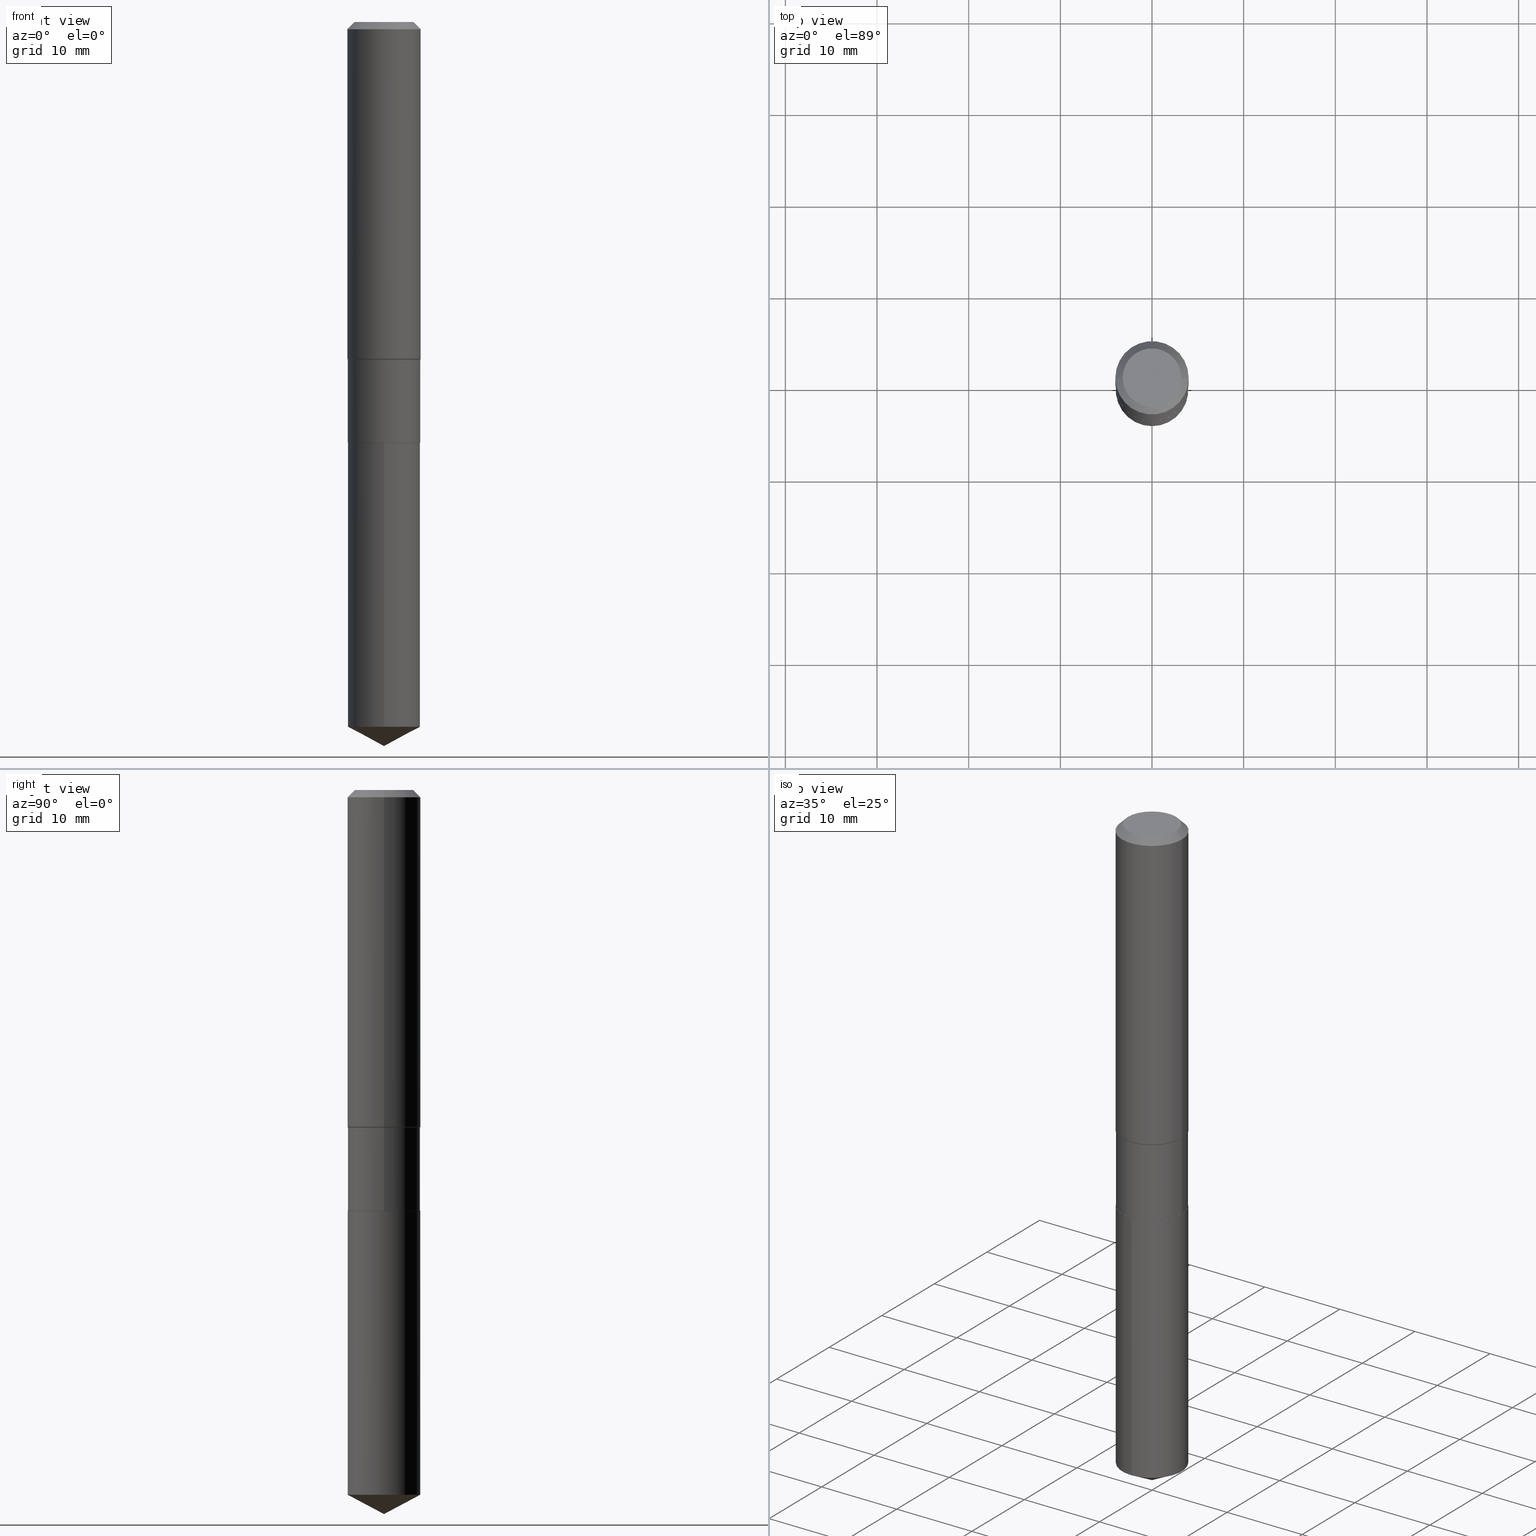
[diagram: canonical four-view strip — front | top / right | iso, engineering-drawing reading convention]
A machine part, canonical four-view strip (front | top / right | iso — engineering-drawing reading convention). The complete STEP part file that produces these views, byte-faithful:
ISO-10303-21;
HEADER;
FILE_DESCRIPTION (( 'STEP AP203' ),
    '1' );
FILE_NAME ('67649.STEP',
    '2024-04-25T08:18:48',
    ( '' ),
    ( '' ),
    'SwSTEP 2.0',
    'SolidWorks 2023',
    '' );
FILE_SCHEMA (( 'CONFIG_CONTROL_DESIGN' ));
ENDSEC;

DATA;
#1 = AXIS2_PLACEMENT_3D ( 'NONE', #155, #153, #296 ) ;
#2 = FACE_OUTER_BOUND ( 'NONE', #451, .T. ) ;
#3 = EDGE_CURVE ( 'NONE', #476, #52, #88, .T. ) ;
#4 = EDGE_CURVE ( 'NONE', #240, #433, #45, .T. ) ;
#5 = DIRECTION ( 'NONE',  ( 1.000000000000000000, -6.982962677686267499E-15, 0.000000000000000000 ) ) ;
#6 = PERSON_AND_ORGANIZATION ( #252, #447 ) ;
#7 = LINE ( 'NONE', #466, #361 ) ;
#8 = EDGE_LOOP ( 'NONE', ( #297, #200, #283, #143 ) ) ;
#9 = ORIENTED_EDGE ( 'NONE', *, *, #443, .F. ) ;
#10 = EDGE_CURVE ( 'NONE', #260, #198, #374, .T. ) ;
#11 = CARTESIAN_POINT ( 'NONE',  ( 0.000000000000000000, 0.000000000000000000, 0.000000000000000000 ) ) ;
#12 = CLOSED_SHELL ( 'NONE', ( #351, #60, #95, #227, #364 ) ) ;
#13 = AXIS2_PLACEMENT_3D ( 'NONE', #81, #197, #225 ) ;
#14 = DIRECTION ( 'NONE',  ( -0.7071067811864267805, 7.493145998869918709E-15, 0.7071067811866682540 ) ) ;
#15 = ORIENTED_EDGE ( 'NONE', *, *, #43, .F. ) ;
#16 = CARTESIAN_POINT ( 'NONE',  ( 4.418962132776542068E-29, -6.309106779289563966E-15, -1.807000000000000162 ) ) ;
#17 = ORIENTED_EDGE ( 'NONE', *, *, #294, .T. ) ;
#18 = LINE ( 'NONE', #137, #138 ) ;
#19 = CONICAL_SURFACE ( 'NONE', #328, 0.1549999999999999989, 0.7853981633972775267 ) ;
#20 = DIRECTION ( 'NONE',  ( 0.7071067811865595631, -2.468850131082382884E-15, 0.7071067811865354713 ) ) ;
#21 = APPROVAL_PERSON_ORGANIZATION ( #6, #26, #39 ) ;
#22 = CARTESIAN_POINT ( 'NONE',  ( 4.418962132776540947E-29, -6.309106779289563178E-15, -1.806999999999999940 ) ) ;
#23 = DIRECTION ( 'NONE',  ( -2.445468806185136597E-29, 3.491481338843145583E-15, 1.000000000000000000 ) ) ;
#24 = ADVANCED_FACE ( 'NONE', ( #98 ), #31, .F. ) ;
#25 = DIRECTION ( 'NONE',  ( -6.165590087286836818E-15, -0.8829475928589266553, 0.4694715627858914164 ) ) ;
#26 = APPROVAL ( #78, 'UNSPECIFIED' ) ;
#27 = CALENDAR_DATE ( 2024, 25, 4 ) ;
#28 = VECTOR ( 'NONE', #299, 39.37007874015748143 ) ;
#29 = VECTOR ( 'NONE', #14, 39.37007874015748143 ) ;
#30 = CONICAL_SURFACE ( 'NONE', #303, 0.1575000000000000011, 0.7853981633974450594 ) ;
#31 = PLANE ( 'NONE',  #373 ) ;
#32 = EDGE_CURVE ( 'NONE', #442, #433, #400, .T. ) ;
#33 = AXIS2_PLACEMENT_3D ( 'NONE', #79, #223, #409 ) ;
#34 = ORIENTED_EDGE ( 'NONE', *, *, #4, .F. ) ;
#36 = ORIENTED_EDGE ( 'NONE', *, *, #93, .F. ) ;
#35 = AXIS2_PLACEMENT_3D ( 'NONE', #269, #131, #199 ) ;
#37 = DIRECTION ( 'NONE',  ( -2.438088387897960049E-29, 3.491481338843145188E-15, 1.000000000000000000 ) ) ;
#38 = ORIENTED_EDGE ( 'NONE', *, *, #423, .T. ) ;
#39 = APPROVAL_ROLE ( '' ) ;
#40 = DIRECTION ( 'NONE',  ( 1.000000000000000000, -6.982962677686269077E-15, 0.000000000000000000 ) ) ;
#41 = ORIENTED_EDGE ( 'NONE', *, *, #294, .F. ) ;
#42 = APPROVAL_DATE_TIME ( #489, #26 ) ;
#43 = EDGE_CURVE ( 'NONE', #444, #77, #220, .T. ) ;
#44 = FACE_OUTER_BOUND ( 'NONE', #96, .T. ) ;
#45 = CIRCLE ( 'NONE', #33, 0.1554999999999999993 ) ;
#46 = AXIS2_PLACEMENT_3D ( 'NONE', #463, #263, #40 ) ;
#47 = CYLINDRICAL_SURFACE ( 'NONE', #35, 0.1554999999999999993 ) ;
#48 = CYLINDRICAL_SURFACE ( 'NONE', #246, 0.1554999999999999438 ) ;
#49 = MANIFOLD_SOLID_BREP ( 'Body-Move/Copy2[1]', #12 ) ;
#50 = FACE_OUTER_BOUND ( 'NONE', #167, .T. ) ;
#51 = PRODUCT ( '67649', '67649', '', ( #147 ) ) ;
#52 = VERTEX_POINT ( 'NONE', #144 ) ;
#53 =( LENGTH_UNIT ( ) NAMED_UNIT ( * ) SI_UNIT ( $, .METRE. ) );
#54 = VECTOR ( 'NONE', #175, 39.37007874015748143 ) ;
#55 = AXIS2_PLACEMENT_3D ( 'NONE', #239, #276, #392 ) ;
#56 = ORIENTED_EDGE ( 'NONE', *, *, #66, .T. ) ;
#57 = CARTESIAN_POINT ( 'NONE',  ( 4.418962132776542068E-29, -6.309106779289563966E-15, -1.807000000000000162 ) ) ;
#58 = ORIENTED_EDGE ( 'NONE', *, *, #127, .F. ) ;
#59 = ADVANCED_FACE ( 'NONE', ( #214 ), #487, .F. ) ;
#60 = ADVANCED_FACE ( 'NONE', ( #323 ), #419, .T. ) ;
#61 = ORIENTED_EDGE ( 'NONE', *, *, #254, .T. ) ;
#62 = CARTESIAN_POINT ( 'NONE',  ( 0.1260000000000000009, -1.027466422270894443E-15, 3.860086710919128072E-18 ) ) ;
#63 = AXIS2_PLACEMENT_3D ( 'NONE', #251, #407, #73 ) ;
#64 = AXIS2_PLACEMENT_3D ( 'NONE', #241, #97, #352 ) ;
#65 = CARTESIAN_POINT ( 'NONE',  ( 0.000000000000000000, 0.000000000000000000, 0.000000000000000000 ) ) ;
#66 = EDGE_CURVE ( 'NONE', #454, #476, #275, .T. ) ;
#67 = CC_DESIGN_APPROVAL ( #26, ( #259 ) ) ;
#68 = DIRECTION ( 'NONE',  ( -2.445468806185136877E-29, 3.491481338843145188E-15, 1.000000000000000000 ) ) ;
#69 = CARTESIAN_POINT ( 'NONE',  ( 0.1575000000000000011, -1.209798283909146741E-15, -0.03150000000000019451 ) ) ;
#70 = APPROVAL_ROLE ( '' ) ;
#71 = VECTOR ( 'NONE', #432, 39.37007874015748143 ) ;
#72 =( NAMED_UNIT ( * ) PLANE_ANGLE_UNIT ( ) SI_UNIT ( $, .RADIAN. ) );
#73 = DIRECTION ( 'NONE',  ( 1.000000000000000000, -6.982962677686266711E-15, 0.000000000000000000 ) ) ;
#74 = ADVANCED_FACE ( 'NONE', ( #102 ), #363, .T. ) ;
#75 = ORIENTED_EDGE ( 'NONE', *, *, #437, .F. ) ;
#76 = CARTESIAN_POINT ( 'NONE',  ( -0.1575000000000000844, 1.119104808822158392E-15, -7.747322767151481189E-30 ) ) ;
#77 = VERTEX_POINT ( 'NONE', #108 ) ;
#78 = APPROVAL_STATUS ( 'not_yet_approved' ) ;
#79 = CARTESIAN_POINT ( 'NONE',  ( 4.418962132776540947E-29, -6.309106779289563178E-15, -1.806999999999999940 ) ) ;
#80 = APPROVAL ( #461, 'UNSPECIFIED' ) ;
#81 = CARTESIAN_POINT ( 'NONE',  ( 7.703226739483226971E-31, -1.099816621735597538E-16, -0.03150000000000019451 ) ) ;
#82 = PERSON_AND_ORGANIZATION ( #252, #447 ) ;
#83 = CARTESIAN_POINT ( 'NONE',  ( 4.418962132776540947E-29, -6.309106779289563178E-15, -1.806999999999999940 ) ) ;
#84 = CIRCLE ( 'NONE', #106, 0.1549999999999999989 ) ;
#85 = CARTESIAN_POINT ( 'NONE',  ( -0.1549999999999999989, -5.207765538861409278E-15, -1.807000000000000162 ) ) ;
#86 = VERTEX_POINT ( 'NONE', #69 ) ;
#87 = CARTESIAN_POINT ( 'NONE',  ( 0.000000000000000000, 0.000000000000000000, 0.000000000000000000 ) ) ;
#88 = LINE ( 'NONE', #181, #237 ) ;
#89 = DIRECTION ( 'NONE',  ( -2.445564275937818742E-29, 3.491344620723504179E-15, 1.000000000000000000 ) ) ;
#90 = DIRECTION ( 'NONE',  ( 2.445564275937818181E-29, -3.491344620723504179E-15, -1.000000000000000000 ) ) ;
#91 = CIRCLE ( 'NONE', #126, 0.1549999999999999989 ) ;
#92 = ORIENTED_EDGE ( 'NONE', *, *, #116, .T. ) ;
#93 = EDGE_CURVE ( 'NONE', #444, #442, #281, .T. ) ;
#94 = LINE ( 'NONE', #215, #71 ) ;
#95 = ADVANCED_FACE ( 'NONE', ( #253 ), #117, .T. ) ;
#96 = EDGE_LOOP ( 'NONE', ( #353, #274, #425, #61 ) ) ;
#97 = DIRECTION ( 'NONE',  ( -2.445564275937818461E-29, 3.491344620723504179E-15, 1.000000000000000000 ) ) ;
#98 = FACE_OUTER_BOUND ( 'NONE', #411, .T. ) ;
#99 = DIRECTION ( 'NONE',  ( -2.445468806185136597E-29, 3.491481338843145583E-15, 1.000000000000000000 ) ) ;
#100 = EDGE_CURVE ( 'NONE', #467, #52, #219, .T. ) ;
#101 = CIRCLE ( 'NONE', #119, 0.1575000000000001676 ) ;
#102 = FACE_OUTER_BOUND ( 'NONE', #345, .T. ) ;
#103 = CC_DESIGN_APPROVAL ( #80, ( #486 ) ) ;
#104 = COORDINATED_UNIVERSAL_TIME_OFFSET ( 5, 0, .BEHIND. ) ;
#105 = AXIS2_PLACEMENT_3D ( 'NONE', #65, #453, #141 ) ;
#106 = AXIS2_PLACEMENT_3D ( 'NONE', #16, #99, #399 ) ;
#107 = DIRECTION ( 'NONE',  ( 0.000000000000000000, 0.000000000000000000, 1.000000000000000000 ) ) ;
#108 = CARTESIAN_POINT ( 'NONE',  ( 1.104893954107029543E-15, 0.1554999999999894245, -3.027519183376641276 ) ) ;
#109 = EDGE_LOOP ( 'NONE', ( #136, #203, #113, #390 ) ) ;
#110 = APPLICATION_PROTOCOL_DEFINITION ( 'international standard', 'config_control_design', 1994, #250 ) ;
#111 = CARTESIAN_POINT ( 'NONE',  ( 7.605848983335612188E-29, -1.085927413865862594E-14, -3.110199999999999854 ) ) ;
#112 = EDGE_CURVE ( 'NONE', #86, #52, #285, .T. ) ;
#113 = ORIENTED_EDGE ( 'NONE', *, *, #112, .F. ) ;
#114 = CALENDAR_DATE ( 2024, 25, 4 ) ;
#115 = DIRECTION ( 'NONE',  ( -2.445468806185136877E-29, 3.491481338843145188E-15, 1.000000000000000000 ) ) ;
#116 = EDGE_CURVE ( 'NONE', #408, #233, #360, .T. ) ;
#117 = CONICAL_SURFACE ( 'NONE', #384, 74.04434902938363905, 1.082104136236487157 ) ;
#118 = ORIENTED_EDGE ( 'NONE', *, *, #405, .F. ) ;
#119 = AXIS2_PLACEMENT_3D ( 'NONE', #123, #228, #5 ) ;
#120 = UNCERTAINTY_MEASURE_WITH_UNIT (LENGTH_MEASURE( 1.000000000000000082E-05 ), #472, 'distance_accuracy_value', 'NONE');
#121 = CARTESIAN_POINT ( 'NONE',  ( 3.544217940804118480E-29, -5.060203904385370615E-15, -1.449300000000000033 ) ) ;
#122 = COORDINATED_UNIVERSAL_TIME_OFFSET ( 5, 0, .BEHIND. ) ;
#123 = CARTESIAN_POINT ( 'NONE',  ( 3.539327003191747834E-29, -5.053220941707684601E-15, -1.447299999999999809 ) ) ;
#124 = DIRECTION ( 'NONE',  ( -6.982962677686265133E-15, -1.000000000000000000, 3.513630860018345064E-15 ) ) ;
#125 = APPROVAL_DATE_TIME ( #456, #80 ) ;
#126 = AXIS2_PLACEMENT_3D ( 'NONE', #57, #168, #362 ) ;
#127 = EDGE_CURVE ( 'NONE', #77, #442, #210, .T. ) ;
#128 = CYLINDRICAL_SURFACE ( 'NONE', #182, 0.1554999999999999438 ) ;
#129 = ORIENTED_EDGE ( 'NONE', *, *, #410, .T. ) ;
#130 = ORIENTED_EDGE ( 'NONE', *, *, #100, .F. ) ;
#131 = DIRECTION ( 'NONE',  ( -2.445564275937818461E-29, 3.491344620723504179E-15, 1.000000000000000000 ) ) ;
#132 = EDGE_LOOP ( 'NONE', ( #397, #56 ) ) ;
#133 = ORIENTED_EDGE ( 'NONE', *, *, #317, .T. ) ;
#134 = DIRECTION ( 'NONE',  ( -0.7071067811865595631, 7.493145998870398336E-15, 0.7071067811865354713 ) ) ;
#135 = PRODUCT_DEFINITION_SHAPE ( 'NONE', 'NONE',  #474 ) ;
#136 = ORIENTED_EDGE ( 'NONE', *, *, #342, .T. ) ;
#137 = CARTESIAN_POINT ( 'NONE',  ( -0.1554999999999999438, -3.955309950278415028E-15, -1.449300000000000033 ) ) ;
#138 = VECTOR ( 'NONE', #134, 39.37007874015748143 ) ;
#139 = EDGE_LOOP ( 'NONE', ( #75, #255, #165, #272 ) ) ;
#140 = DIRECTION ( 'NONE',  ( -2.445468806185136597E-29, 3.491481338843145583E-15, 1.000000000000000000 ) ) ;
#141 = DIRECTION ( 'NONE',  ( 1.000000000000000000, -6.982962677686267499E-15, 4.876176775795936353E-29 ) ) ;
#142 = CARTESIAN_POINT ( 'NONE',  ( 7.703226739483226971E-31, -1.099816621735597538E-16, -0.03150000000000019451 ) ) ;
#143 = ORIENTED_EDGE ( 'NONE', *, *, #317, .F. ) ;
#144 = CARTESIAN_POINT ( 'NONE',  ( -0.1575000000000000011, -1.462496493118463440E-15, -0.03150000000000019451 ) ) ;
#145 = FACE_OUTER_BOUND ( 'NONE', #308, .T. ) ;
#146 = AXIS2_PLACEMENT_3D ( 'NONE', #11, #426, #312 ) ;
#147 = MECHANICAL_CONTEXT ( 'NONE', #231, 'mechanical' ) ;
#148 = EDGE_CURVE ( 'NONE', #260, #267, #401, .T. ) ;
#149 = DIRECTION ( 'NONE',  ( -2.445468806185136597E-29, 3.491481338843145583E-15, 1.000000000000000000 ) ) ;
#150 = AXIS2_PLACEMENT_3D ( 'NONE', #332, #448, #488 ) ;
#151 = AXIS2_PLACEMENT_3D ( 'NONE', #142, #211, #245 ) ;
#152 = ORIENTED_EDGE ( 'NONE', *, *, #423, .F. ) ;
#153 = DIRECTION ( 'NONE',  ( -2.445564275937818461E-29, 3.491344620723504179E-15, 1.000000000000000000 ) ) ;
#154 = ORIENTED_EDGE ( 'NONE', *, *, #32, .F. ) ;
#155 = CARTESIAN_POINT ( 'NONE',  ( -8.867603661060943004E-28, 1.265954855378931861E-13, 36.25987874015748247 ) ) ;
#156 = FACE_OUTER_BOUND ( 'NONE', #428, .T. ) ;
#157 = DATE_TIME_ROLE ( 'creation_date' ) ;
#158 = CYLINDRICAL_SURFACE ( 'NONE', #430, 0.1554999999999999993 ) ;
#159 = DIRECTION ( 'NONE',  ( -2.445468806185136597E-29, 3.491481338843145583E-15, 1.000000000000000000 ) ) ;
#160 = APPROVAL_ROLE ( '' ) ;
#161 = CARTESIAN_POINT ( 'NONE',  ( 7.703226739483226971E-31, -1.099816621735597538E-16, -0.03150000000000019451 ) ) ;
#162 = ORIENTED_EDGE ( 'NONE', *, *, #405, .T. ) ;
#163 = CIRCLE ( 'NONE', #212, 0.1554999999999999993 ) ;
#164 = DIRECTION ( 'NONE',  ( 1.000000000000000000, -6.982962677686268288E-15, 4.876176775795936353E-29 ) ) ;
#165 = ORIENTED_EDGE ( 'NONE', *, *, #10, .T. ) ;
#166 = CARTESIAN_POINT ( 'NONE',  ( 3.544217940804118480E-29, -5.060203904385370615E-15, -1.449300000000000033 ) ) ;
#167 = EDGE_LOOP ( 'NONE', ( #205, #431, #190, #34 ) ) ;
#168 = DIRECTION ( 'NONE',  ( -2.445468806185136597E-29, 3.491481338843145583E-15, 1.000000000000000000 ) ) ;
#169 = ORIENTED_EDGE ( 'NONE', *, *, #66, .F. ) ;
#170 = CARTESIAN_POINT ( 'NONE',  ( 7.403820245739254585E-29, -1.057035986466144148E-14, -3.027519183376640832 ) ) ;
#171 = CIRCLE ( 'NONE', #287, 0.1260000000000000009 ) ;
#172 = DIRECTION ( 'NONE',  ( 1.000000000000000000, -6.982962677686265922E-15, 4.876176775795935793E-29 ) ) ;
#173 = DIRECTION ( 'NONE',  ( -6.982962677686265133E-15, -1.000000000000000000, 3.513630860018345064E-15 ) ) ;
#174 = DIRECTION ( 'NONE',  ( 1.000000000000000000, -6.982962677686265922E-15, 0.000000000000000000 ) ) ;
#175 = DIRECTION ( 'NONE',  ( -2.445564275937818742E-29, 3.491344620723504179E-15, 1.000000000000000000 ) ) ;
#176 = DATE_AND_TIME ( #27, #421 ) ;
#177 = VECTOR ( 'NONE', #20, 39.37007874015748143 ) ;
#178 = CIRCLE ( 'NONE', #64, 0.1554999999999999993 ) ;
#179 = PRODUCT_RELATED_PRODUCT_CATEGORY ( 'detail', '', ( #51 ) ) ;
#180 = EDGE_CURVE ( 'NONE', #233, #408, #266, .T. ) ;
#181 = CARTESIAN_POINT ( 'NONE',  ( -0.1575000000000000011, 9.898349595620272334E-16, -0.03150000000000019451 ) ) ;
#182 = AXIS2_PLACEMENT_3D ( 'NONE', #301, #310, #383 ) ;
#183 = CC_DESIGN_APPROVAL ( #369, ( #474 ) ) ;
#184 = ORIENTED_EDGE ( 'NONE', *, *, #443, .T. ) ;
#185 = PERSON_AND_ORGANIZATION ( #252, #447 ) ;
#186 = CARTESIAN_POINT ( 'NONE',  ( -1.085850696380170092E-15, -0.1555000000000062998, -1.806999999999999273 ) ) ;
#187 = EDGE_LOOP ( 'NONE', ( #208, #17, #460, #391 ) ) ;
#188 = COORDINATED_UNIVERSAL_TIME_OFFSET ( 5, 0, .BEHIND. ) ;
#189 = CARTESIAN_POINT ( 'NONE',  ( 3.539327003191747834E-29, -5.053220941707684601E-15, -1.447299999999999809 ) ) ;
#190 = ORIENTED_EDGE ( 'NONE', *, *, #32, .T. ) ;
#191 = DIRECTION ( 'NONE',  ( -1.000000000000000000, 6.982962677686265922E-15, 0.000000000000000000 ) ) ;
#192 = ADVANCED_FACE ( 'NONE', ( #271 ), #48, .T. ) ;
#193 = AXIS2_PLACEMENT_3D ( 'NONE', #449, #107, #298 ) ;
#194 = DATE_AND_TIME ( #114, #304 ) ;
#195 = LINE ( 'NONE', #416, #350 ) ;
#196 = CC_DESIGN_PERSON_AND_ORGANIZATION_ASSIGNMENT ( #224, #226, ( #486 ) ) ;
#197 = DIRECTION ( 'NONE',  ( -2.445468806185136597E-29, 3.491481338843145583E-15, 1.000000000000000000 ) ) ;
#198 = VERTEX_POINT ( 'NONE', #234 ) ;
#199 = DIRECTION ( 'NONE',  ( -6.982962677686265133E-15, -1.000000000000000000, 3.513630860018345064E-15 ) ) ;
#200 = ORIENTED_EDGE ( 'NONE', *, *, #356, .T. ) ;
#201 = ADVANCED_FACE ( 'NONE', ( #389 ), #128, .T. ) ;
#202 = CIRCLE ( 'NONE', #414, 0.1554999999999999438 ) ;
#203 = ORIENTED_EDGE ( 'NONE', *, *, #100, .T. ) ;
#204 = FACE_OUTER_BOUND ( 'NONE', #139, .T. ) ;
#205 = ORIENTED_EDGE ( 'NONE', *, *, #213, .F. ) ;
#206 = DIRECTION ( 'NONE',  ( 1.000000000000000000, -6.982962677686263555E-15, 0.000000000000000000 ) ) ;
#207 = MANIFOLD_SOLID_BREP ( 'Body-Move/Copy2[2]', #217 ) ;
#208 = ORIENTED_EDGE ( 'NONE', *, *, #180, .T. ) ;
#209 = ORIENTED_EDGE ( 'NONE', *, *, #213, .T. ) ;
#210 = CIRCLE ( 'NONE', #484, 0.1554999999999999993 ) ;
#211 = DIRECTION ( 'NONE',  ( 2.445468806185136597E-29, -3.491481338843145583E-15, -1.000000000000000000 ) ) ;
#212 = AXIS2_PLACEMENT_3D ( 'NONE', #170, #436, #173 ) ;
#213 = EDGE_CURVE ( 'NONE', #77, #240, #7, .T. ) ;
#214 = FACE_OUTER_BOUND ( 'NONE', #132, .T. ) ;
#215 = CARTESIAN_POINT ( 'NONE',  ( 0.1575000000000000011, -1.190510096822576026E-15, -0.03150000000000019451 ) ) ;
#216 = DIRECTION ( 'NONE',  ( 1.000000000000000000, -6.982962677686269077E-15, 0.000000000000000000 ) ) ;
#217 = CLOSED_SHELL ( 'NONE', ( #377, #458, #229, #288, #201, #192, #387, #74, #336, #59, #24, #385 ) ) ;
#218 = VECTOR ( 'NONE', #68, 39.37007874015748143 ) ;
#219 = LINE ( 'NONE', #76, #291 ) ;
#220 = LINE ( 'NONE', #334, #28 ) ;
#221 = VECTOR ( 'NONE', #381, 39.37007874015748143 ) ;
#222 = SHAPE_DEFINITION_REPRESENTATION ( #135, #398 ) ;
#223 = DIRECTION ( 'NONE',  ( -2.445564275937818461E-29, 3.491344620723504179E-15, 1.000000000000000000 ) ) ;
#224 = PERSON_AND_ORGANIZATION ( #252, #447 ) ;
#225 = DIRECTION ( 'NONE',  ( 1.000000000000000000, -6.982962677686265922E-15, 0.000000000000000000 ) ) ;
#226 = PERSON_AND_ORGANIZATION_ROLE ( 'design_supplier' ) ;
#227 = ADVANCED_FACE ( 'NONE', ( #50 ), #47, .T. ) ;
#228 = DIRECTION ( 'NONE',  ( -2.445468806185136597E-29, 3.491481338843145583E-15, 1.000000000000000000 ) ) ;
#229 = ADVANCED_FACE ( 'NONE', ( #347 ), #232, .T. ) ;
#230 = AXIS2_PLACEMENT_3D ( 'NONE', #189, #455, #337 ) ;
#231 = APPLICATION_CONTEXT ( 'configuration controlled 3d designs of mechanical parts and assemblies' ) ;
#232 = CYLINDRICAL_SURFACE ( 'NONE', #146, 0.1575000000000000844 ) ;
#233 = VERTEX_POINT ( 'NONE', #305 ) ;
#234 = CARTESIAN_POINT ( 'NONE',  ( 0.1575000000000001676, -6.153037563443272081E-15, -1.447299999999999809 ) ) ;
#235 = DIRECTION ( 'NONE',  ( -2.445468806185136877E-29, 3.491481338843145188E-15, 1.000000000000000000 ) ) ;
#236 = ORIENTED_EDGE ( 'NONE', *, *, #437, .T. ) ;
#237 = VECTOR ( 'NONE', #244, 39.37007874015748143 ) ;
#238 = AXIS2_PLACEMENT_3D ( 'NONE', #166, #475, #314 ) ;
#239 = CARTESIAN_POINT ( 'NONE',  ( 4.418962132776542068E-29, -6.309106779289563966E-15, -1.807000000000000162 ) ) ;
#240 = VERTEX_POINT ( 'NONE', #386 ) ;
#241 = CARTESIAN_POINT ( 'NONE',  ( 4.418962132776540947E-29, -6.309106779289563178E-15, -1.806999999999999940 ) ) ;
#242 = EDGE_LOOP ( 'NONE', ( #169, #322, #293, #277 ) ) ;
#243 = CARTESIAN_POINT ( 'NONE',  ( -0.1549999999999999989, -5.205116311687297288E-15, -1.807000000000000162 ) ) ;
#244 = DIRECTION ( 'NONE',  ( -0.7071067811865452413, 2.468850131082233000E-15, -0.7071067811865497932 ) ) ;
#245 = DIRECTION ( 'NONE',  ( -1.000000000000000000, 6.982962677686265922E-15, 0.000000000000000000 ) ) ;
#246 = AXIS2_PLACEMENT_3D ( 'NONE', #87, #422, #164 ) ;
#247 = LOCAL_TIME ( 4, 18, 48.00000000000000000, #122 ) ;
#248 = DIRECTION ( 'NONE',  ( -2.445564275937818461E-29, 3.491344620723504179E-15, 1.000000000000000000 ) ) ;
#249 = CC_DESIGN_PERSON_AND_ORGANIZATION_ASSIGNMENT ( #289, #446, ( #474 ) ) ;
#250 = APPLICATION_CONTEXT ( 'configuration controlled 3d designs of mechanical parts and assemblies' ) ;
#251 = CARTESIAN_POINT ( 'NONE',  ( 4.417739398373449267E-29, -6.307361038620141674E-15, -1.806499999999999995 ) ) ;
#252 = PERSON ( 'UNSPECIFIED', 'UNSPECIFIED', 'UNSPECIFIED', ('UNSPECIFIED'), ('UNSPECIFIED'), ('UNSPECIFIED') ) ;
#253 = FACE_OUTER_BOUND ( 'NONE', #388, .T. ) ;
#254 = EDGE_CURVE ( 'NONE', #52, #86, #258, .T. ) ;
#255 = ORIENTED_EDGE ( 'NONE', *, *, #300, .T. ) ;
#256 = SECURITY_CLASSIFICATION_LEVEL ( 'unclassified' ) ;
#257 = CARTESIAN_POINT ( 'NONE',  ( 7.703226739483226971E-31, -1.099816621735597538E-16, -0.03150000000000019451 ) ) ;
#258 = CIRCLE ( 'NONE', #13, 0.1575000000000000011 ) ;
#259 = SECURITY_CLASSIFICATION ( '', '', #256 ) ;
#260 = VERTEX_POINT ( 'NONE', #265 ) ;
#261 = DIRECTION ( 'NONE',  ( -2.445468806185136597E-29, 3.491481338843145583E-15, 1.000000000000000000 ) ) ;
#262 = CC_DESIGN_PERSON_AND_ORGANIZATION_ASSIGNMENT ( #295, #371, ( #51 ) ) ;
#263 = DIRECTION ( 'NONE',  ( -2.445468806185136597E-29, 3.491481338843145583E-15, 1.000000000000000000 ) ) ;
#264 = CALENDAR_DATE ( 2024, 25, 4 ) ;
#265 = CARTESIAN_POINT ( 'NONE',  ( 0.1554999999999999438, -6.146054600765585278E-15, -1.449300000000000033 ) ) ;
#266 = CIRCLE ( 'NONE', #63, 0.1554999999999999993 ) ;
#267 = VERTEX_POINT ( 'NONE', #379 ) ;
#268 = VECTOR ( 'NONE', #235, 39.37007874015748143 ) ;
#269 = CARTESIAN_POINT ( 'NONE',  ( 4.418962132776540947E-29, -6.309106779289563178E-15, -1.806999999999999940 ) ) ;
#270 = ORIENTED_EDGE ( 'NONE', *, *, #370, .T. ) ;
#271 = FACE_OUTER_BOUND ( 'NONE', #380, .T. ) ;
#272 = ORIENTED_EDGE ( 'NONE', *, *, #290, .F. ) ;
#273 = CARTESIAN_POINT ( 'NONE',  ( 7.606194011021802781E-29, -1.085878003937424329E-14, -3.110199999999999854 ) ) ;
#274 = ORIENTED_EDGE ( 'NONE', *, *, #346, .F. ) ;
#275 = CIRCLE ( 'NONE', #319, 0.1260000000000000009 ) ;
#276 = DIRECTION ( 'NONE',  ( -2.445468806185136597E-29, 3.491481338843145583E-15, 1.000000000000000000 ) ) ;
#277 = ORIENTED_EDGE ( 'NONE', *, *, #3, .F. ) ;
#278 = CC_DESIGN_PERSON_AND_ORGANIZATION_ASSIGNMENT ( #382, #306, ( #259 ) ) ;
#279 = CARTESIAN_POINT ( 'NONE',  ( -0.1554999999999999993, -4.578888517395800557E-15, -1.806499999999999995 ) ) ;
#280 = CC_DESIGN_PERSON_AND_ORGANIZATION_ASSIGNMENT ( #82, #452, ( #486 ) ) ;
#281 = LINE ( 'NONE', #111, #439 ) ;
#282 = CARTESIAN_POINT ( 'NONE',  ( -0.1575000000000001676, -3.934116132885524631E-15, -1.447299999999999809 ) ) ;
#283 = ORIENTED_EDGE ( 'NONE', *, *, #180, .F. ) ;
#284 = DIRECTION ( 'NONE',  ( -2.445468806185136597E-29, 3.491481338843145583E-15, 1.000000000000000000 ) ) ;
#285 = CIRCLE ( 'NONE', #331, 0.1575000000000000011 ) ;
#286 = DIRECTION ( 'NONE',  ( 6.982962677686265922E-15, 1.000000000000000000, -3.491344620723504179E-15 ) ) ;
#287 = AXIS2_PLACEMENT_3D ( 'NONE', #340, #159, #307 ) ;
#288 = ADVANCED_FACE ( 'NONE', ( #156 ), #440, .T. ) ;
#289 = PERSON_AND_ORGANIZATION ( #252, #447 ) ;
#290 = EDGE_CURVE ( 'NONE', #467, #198, #485, .T. ) ;
#291 = VECTOR ( 'NONE', #115, 39.37007874015748143 ) ;
#292 = DIRECTION ( 'NONE',  ( -2.445468806185136597E-29, 3.491481338843145583E-15, 1.000000000000000000 ) ) ;
#293 = ORIENTED_EDGE ( 'NONE', *, *, #112, .T. ) ;
#294 = EDGE_CURVE ( 'NONE', #408, #267, #195, .T. ) ;
#295 = PERSON_AND_ORGANIZATION ( #252, #447 ) ;
#296 = DIRECTION ( 'NONE',  ( -6.982962677686268288E-15, -1.000000000000000000, 3.541896320645556136E-15 ) ) ;
#297 = ORIENTED_EDGE ( 'NONE', *, *, #462, .T. ) ;
#298 = DIRECTION ( 'NONE',  ( 1.000000000000000000, 0.000000000000000000, 0.000000000000000000 ) ) ;
#299 = DIRECTION ( 'NONE',  ( 6.273719981627766865E-15, 0.8829475928589298750, 0.4694715627858851992 ) ) ;
#300 = EDGE_CURVE ( 'NONE', #267, #260, #202, .T. ) ;
#301 = CARTESIAN_POINT ( 'NONE',  ( 0.000000000000000000, 0.000000000000000000, 0.000000000000000000 ) ) ;
#302 = CONICAL_SURFACE ( 'NONE', #151, 0.1575000000000000011, 0.7853981633974450594 ) ;
#303 = AXIS2_PLACEMENT_3D ( 'NONE', #161, #344, #191 ) ;
#304 = LOCAL_TIME ( 4, 18, 48.00000000000000000, #104 ) ;
#305 = CARTESIAN_POINT ( 'NONE',  ( 0.1554999999999999993, -7.393211735000357126E-15, -1.806499999999999995 ) ) ;
#306 = PERSON_AND_ORGANIZATION_ROLE ( 'classification_officer' ) ;
#307 = DIRECTION ( 'NONE',  ( 1.000000000000000000, -6.982962677686265922E-15, 4.876281427513067258E-29 ) ) ;
#308 = EDGE_LOOP ( 'NONE', ( #184, #333 ) ) ;
#309 = PERSON_AND_ORGANIZATION ( #252, #447 ) ;
#310 = DIRECTION ( 'NONE',  ( -2.445468806185136597E-29, 3.491481338843145583E-15, 1.000000000000000000 ) ) ;
#311 = ORIENTED_EDGE ( 'NONE', *, *, #254, .F. ) ;
#312 = DIRECTION ( 'NONE',  ( 1.000000000000000000, -6.982962677686267499E-15, 4.876176775795936353E-29 ) ) ;
#313 = ORIENTED_EDGE ( 'NONE', *, *, #93, .T. ) ;
#314 = DIRECTION ( 'NONE',  ( 1.000000000000000000, -6.982962677686269077E-15, 0.000000000000000000 ) ) ;
#315 = ORIENTED_EDGE ( 'NONE', *, *, #462, .F. ) ;
#316 = PLANE ( 'NONE',  #320 ) ;
#317 = EDGE_CURVE ( 'NONE', #424, #233, #341, .T. ) ;
#318 = ORIENTED_EDGE ( 'NONE', *, *, #10, .F. ) ;
#319 = AXIS2_PLACEMENT_3D ( 'NONE', #450, #292, #473 ) ;
#320 = AXIS2_PLACEMENT_3D ( 'NONE', #22, #90, #286 ) ;
#321 = LENGTH_MEASURE_WITH_UNIT ( LENGTH_MEASURE( 0.02539999999999999897 ), #53 );
#322 = ORIENTED_EDGE ( 'NONE', *, *, #479, .T. ) ;
#323 = FACE_OUTER_BOUND ( 'NONE', #465, .T. ) ;
#324 = CARTESIAN_POINT ( 'NONE',  ( -1.085850696380140313E-15, -0.1555000000000105465, -3.027519183376639944 ) ) ;
#325 = DIRECTION ( 'NONE',  ( -6.982962677686268288E-15, -1.000000000000000000, 3.541896320645556136E-15 ) ) ;
#326 = CARTESIAN_POINT ( 'NONE',  ( 4.418962132776542068E-29, -6.309106779289563966E-15, -1.807000000000000162 ) ) ;
#327 = CARTESIAN_POINT ( 'NONE',  ( -8.867603661060943004E-28, 1.265954855378931861E-13, 36.25987874015748247 ) ) ;
#328 = AXIS2_PLACEMENT_3D ( 'NONE', #326, #140, #206 ) ;
#329 = CC_DESIGN_SECURITY_CLASSIFICATION ( #259, ( #486 ) ) ;
#330 =( NAMED_UNIT ( * ) SI_UNIT ( $, .STERADIAN. ) SOLID_ANGLE_UNIT ( ) );
#331 = AXIS2_PLACEMENT_3D ( 'NONE', #257, #23, #174 ) ;
#332 = CARTESIAN_POINT ( 'NONE',  ( -4.719860820353100843E-47, 6.738710358733633822E-33, 1.930043355456229866E-18 ) ) ;
#333 = ORIENTED_EDGE ( 'NONE', *, *, #4, .T. ) ;
#334 = CARTESIAN_POINT ( 'NONE',  ( 7.606197036507338100E-29, -1.085878003937424487E-14, -3.110199999999999854 ) ) ;
#335 = CALENDAR_DATE ( 2024, 25, 4 ) ;
#336 = ADVANCED_FACE ( 'NONE', ( #44 ), #30, .T. ) ;
#337 = DIRECTION ( 'NONE',  ( 1.000000000000000000, -6.982962677686267499E-15, 0.000000000000000000 ) ) ;
#338 = ORIENTED_EDGE ( 'NONE', *, *, #43, .T. ) ;
#339 = COORDINATED_UNIVERSAL_TIME_OFFSET ( 5, 0, .BEHIND. ) ;
#340 = CARTESIAN_POINT ( 'NONE',  ( -9.439721640706201686E-47, 1.347742071746726764E-32, 3.860086710912459732E-18 ) ) ;
#341 = LINE ( 'NONE', #457, #221 ) ;
#342 = EDGE_CURVE ( 'NONE', #198, #467, #101, .T. ) ;
#343 = DATE_AND_TIME ( #335, #481 ) ;
#344 = DIRECTION ( 'NONE',  ( 2.445468806185136597E-29, -3.491481338843145583E-15, -1.000000000000000000 ) ) ;
#345 = EDGE_LOOP ( 'NONE', ( #130, #358, #270, #311 ) ) ;
#346 = EDGE_CURVE ( 'NONE', #476, #454, #171, .T. ) ;
#347 = FACE_OUTER_BOUND ( 'NONE', #109, .T. ) ;
#348 = AXIS2_PLACEMENT_3D ( 'NONE', #480, #149, #216 ) ;
#349 = ORIENTED_EDGE ( 'NONE', *, *, #148, .T. ) ;
#350 = VECTOR ( 'NONE', #490, 39.37007874015748143 ) ;
#351 = ADVANCED_FACE ( 'NONE', ( #2 ), #158, .T. ) ;
#352 = DIRECTION ( 'NONE',  ( -6.982962677686265133E-15, -1.000000000000000000, 3.513630860018345064E-15 ) ) ;
#353 = ORIENTED_EDGE ( 'NONE', *, *, #479, .F. ) ;
#354 = ORIENTED_EDGE ( 'NONE', *, *, #342, .F. ) ;
#355 = FACE_OUTER_BOUND ( 'NONE', #8, .T. ) ;
#356 = EDGE_CURVE ( 'NONE', #359, #408, #418, .T. ) ;
#357 = LINE ( 'NONE', #478, #218 ) ;
#358 = ORIENTED_EDGE ( 'NONE', *, *, #290, .T. ) ;
#359 = VERTEX_POINT ( 'NONE', #243 ) ;
#360 = CIRCLE ( 'NONE', #393, 0.1554999999999999993 ) ;
#361 = VECTOR ( 'NONE', #89, 39.37007874015748143 ) ;
#362 = DIRECTION ( 'NONE',  ( 1.000000000000000000, -6.982962677686263555E-15, 0.000000000000000000 ) ) ;
#363 = CYLINDRICAL_SURFACE ( 'NONE', #105, 0.1575000000000000844 ) ;
#364 = ADVANCED_FACE ( 'NONE', ( #145 ), #316, .F. ) ;
#365 = DIRECTION ( 'NONE',  ( 1.000000000000000000, -6.982962677686266711E-15, 0.000000000000000000 ) ) ;
#366 = COORDINATED_UNIVERSAL_TIME_OFFSET ( 5, 0, .BEHIND. ) ;
#367 = DIMENSIONAL_EXPONENTS ( 1.000000000000000000, 0.000000000000000000, 0.000000000000000000, 0.000000000000000000, 0.000000000000000000, 0.000000000000000000, 0.000000000000000000 ) ;
#368 = LOCAL_TIME ( 4, 18, 48.00000000000000000, #339 ) ;
#369 = APPROVAL ( #404, 'UNSPECIFIED' ) ;
#370 = EDGE_CURVE ( 'NONE', #198, #86, #441, .T. ) ;
#371 = PERSON_AND_ORGANIZATION_ROLE ( 'design_owner' ) ;
#372 = CARTESIAN_POINT ( 'NONE',  ( 2.195023978348705246E-29, -9.493912795129127825E-15, -1.807000000000000162 ) ) ;
#373 = AXIS2_PLACEMENT_3D ( 'NONE', #372, #37, #172 ) ;
#374 = LINE ( 'NONE', #413, #177 ) ;
#375 = CONICAL_SURFACE ( 'NONE', #238, 0.1554999999999999438, 0.7853981633974653764 ) ;
#376 = APPROVAL_PERSON_ORGANIZATION ( #309, #80, #160 ) ;
#377 = ADVANCED_FACE ( 'NONE', ( #355 ), #19, .T. ) ;
#378 = CALENDAR_DATE ( 2024, 25, 4 ) ;
#379 = CARTESIAN_POINT ( 'NONE',  ( -0.1554999999999999438, -4.578888517395801346E-15, -1.449300000000000033 ) ) ;
#380 = EDGE_LOOP ( 'NONE', ( #41, #92, #129, #427 ) ) ;
#381 = DIRECTION ( 'NONE',  ( 0.7071067811864267805, -2.468850131080992517E-15, 0.7071067811866682540 ) ) ;
#382 = PERSON_AND_ORGANIZATION ( #252, #447 ) ;
#383 = DIRECTION ( 'NONE',  ( 1.000000000000000000, -6.982962677686268288E-15, 4.876176775795936353E-29 ) ) ;
#384 = AXIS2_PLACEMENT_3D ( 'NONE', #327, #435, #325 ) ;
#385 = ADVANCED_FACE ( 'NONE', ( #429 ), #394, .T. ) ;
#386 = CARTESIAN_POINT ( 'NONE',  ( 1.104893954107029740E-15, 0.1554999999999936711, -1.807000000000000384 ) ) ;
#387 = ADVANCED_FACE ( 'NONE', ( #204 ), #375, .T. ) ;
#388 = EDGE_LOOP ( 'NONE', ( #15, #313, #58 ) ) ;
#389 = FACE_OUTER_BOUND ( 'NONE', #187, .T. ) ;
#390 = ORIENTED_EDGE ( 'NONE', *, *, #370, .F. ) ;
#391 = ORIENTED_EDGE ( 'NONE', *, *, #410, .F. ) ;
#392 = DIRECTION ( 'NONE',  ( 1.000000000000000000, -6.982962677686263555E-15, 0.000000000000000000 ) ) ;
#393 = AXIS2_PLACEMENT_3D ( 'NONE', #477, #284, #365 ) ;
#394 = CONICAL_SURFACE ( 'NONE', #55, 0.1549999999999999989, 0.7853981633972775267 ) ;
#395 = FACE_OUTER_BOUND ( 'NONE', #242, .T. ) ;
#396 = EDGE_LOOP ( 'NONE', ( #471, #162, #133, #469 ) ) ;
#397 = ORIENTED_EDGE ( 'NONE', *, *, #346, .T. ) ;
#398 = ADVANCED_BREP_SHAPE_REPRESENTATION ( '67649', ( #49, #207, #193 ), #464 ) ;
#399 = DIRECTION ( 'NONE',  ( 1.000000000000000000, -6.982962677686263555E-15, 0.000000000000000000 ) ) ;
#400 = LINE ( 'NONE', #186, #54 ) ;
#401 = CIRCLE ( 'NONE', #348, 0.1554999999999999438 ) ;
#402 = CARTESIAN_POINT ( 'NONE',  ( -0.1260000000000000009, 9.348441284752484904E-16, 3.860086710906114178E-18 ) ) ;
#403 = DIRECTION ( 'NONE',  ( -6.982962677686265133E-15, -1.000000000000000000, 3.513630860018345064E-15 ) ) ;
#404 = APPROVAL_STATUS ( 'not_yet_approved' ) ;
#405 = EDGE_CURVE ( 'NONE', #359, #424, #84, .T. ) ;
#406 = CC_DESIGN_DATE_AND_TIME_ASSIGNMENT ( #343, #412, ( #259 ) ) ;
#407 = DIRECTION ( 'NONE',  ( -2.445468806185136597E-29, 3.491481338843145583E-15, 1.000000000000000000 ) ) ;
#408 = VERTEX_POINT ( 'NONE', #279 ) ;
#409 = DIRECTION ( 'NONE',  ( -6.982962677686265133E-15, -1.000000000000000000, 3.513630860018345064E-15 ) ) ;
#410 = EDGE_CURVE ( 'NONE', #233, #260, #357, .T. ) ;
#411 = EDGE_LOOP ( 'NONE', ( #315, #118 ) ) ;
#412 = DATE_TIME_ROLE ( 'classification_date' ) ;
#413 = CARTESIAN_POINT ( 'NONE',  ( 0.1554999999999999438, -6.146054600765585278E-15, -1.449300000000000033 ) ) ;
#414 = AXIS2_PLACEMENT_3D ( 'NONE', #121, #261, #415 ) ;
#415 = DIRECTION ( 'NONE',  ( 1.000000000000000000, -6.982962677686269077E-15, 0.000000000000000000 ) ) ;
#416 = CARTESIAN_POINT ( 'NONE',  ( -0.1554999999999999438, 1.104893954106955390E-15, -7.648944065346376022E-30 ) ) ;
#417 = DESIGN_CONTEXT ( 'detailed design', #250, 'design' ) ;
#418 = LINE ( 'NONE', #85, #29 ) ;
#419 = CONICAL_SURFACE ( 'NONE', #1, 74.04434902938363905, 1.082104136236487157 ) ;
#420 = APPROVAL_PERSON_ORGANIZATION ( #185, #369, #70 ) ;
#421 = LOCAL_TIME ( 4, 18, 48.00000000000000000, #366 ) ;
#422 = DIRECTION ( 'NONE',  ( -2.445468806185136597E-29, 3.491481338843145583E-15, 1.000000000000000000 ) ) ;
#423 = EDGE_CURVE ( 'NONE', #442, #77, #163, .T. ) ;
#424 = VERTEX_POINT ( 'NONE', #468 ) ;
#425 = ORIENTED_EDGE ( 'NONE', *, *, #3, .T. ) ;
#426 = DIRECTION ( 'NONE',  ( -2.445468806185136597E-29, 3.491481338843145583E-15, 1.000000000000000000 ) ) ;
#427 = ORIENTED_EDGE ( 'NONE', *, *, #300, .F. ) ;
#428 = EDGE_LOOP ( 'NONE', ( #349, #236, #354, #318 ) ) ;
#429 = FACE_OUTER_BOUND ( 'NONE', #396, .T. ) ;
#430 = AXIS2_PLACEMENT_3D ( 'NONE', #83, #459, #124 ) ;
#431 = ORIENTED_EDGE ( 'NONE', *, *, #127, .T. ) ;
#432 = DIRECTION ( 'NONE',  ( 0.7071067811865452413, -7.319954787623248157E-15, -0.7071067811865497932 ) ) ;
#433 = VERTEX_POINT ( 'NONE', #470 ) ;
#434 = CARTESIAN_POINT ( 'NONE',  ( 0.1575000000000000844, -1.099816621735587677E-15, 7.679978421878603638E-30 ) ) ;
#435 = DIRECTION ( 'NONE',  ( -2.445564275937818461E-29, 3.491344620723504179E-15, 1.000000000000000000 ) ) ;
#436 = DIRECTION ( 'NONE',  ( -2.445564275937818461E-29, 3.491344620723504179E-15, 1.000000000000000000 ) ) ;
#437 = EDGE_CURVE ( 'NONE', #267, #467, #18, .T. ) ;
#438 = CARTESIAN_POINT ( 'NONE',  ( 7.403820245739254585E-29, -1.057035986466144148E-14, -3.027519183376640832 ) ) ;
#439 = VECTOR ( 'NONE', #25, 39.37007874015748854 ) ;
#440 = CONICAL_SURFACE ( 'NONE', #46, 0.1554999999999999438, 0.7853981633974653764 ) ;
#441 = LINE ( 'NONE', #434, #268 ) ;
#442 = VERTEX_POINT ( 'NONE', #324 ) ;
#443 = EDGE_CURVE ( 'NONE', #433, #240, #178, .T. ) ;
#444 = VERTEX_POINT ( 'NONE', #273 ) ;
#445 = CC_DESIGN_DATE_AND_TIME_ASSIGNMENT ( #194, #157, ( #474 ) ) ;
#446 = PERSON_AND_ORGANIZATION_ROLE ( 'creator' ) ;
#447 = ORGANIZATION ( 'UNSPECIFIED', 'UNSPECIFIED', '' ) ;
#448 = DIRECTION ( 'NONE',  ( 2.438088387897960049E-29, -3.491481338843145188E-15, -1.000000000000000000 ) ) ;
#449 = CARTESIAN_POINT ( 'NONE',  ( 0.000000000000000000, 0.000000000000000000, 0.000000000000000000 ) ) ;
#450 = CARTESIAN_POINT ( 'NONE',  ( -9.439721640706201686E-47, 1.347742071746726764E-32, 3.860086710912459732E-18 ) ) ;
#451 = EDGE_LOOP ( 'NONE', ( #38, #209, #9, #154 ) ) ;
#452 = PERSON_AND_ORGANIZATION_ROLE ( 'creator' ) ;
#453 = DIRECTION ( 'NONE',  ( -2.445468806185136597E-29, 3.491481338843145583E-15, 1.000000000000000000 ) ) ;
#454 = VERTEX_POINT ( 'NONE', #62 ) ;
#455 = DIRECTION ( 'NONE',  ( -2.445468806185136597E-29, 3.491481338843145583E-15, 1.000000000000000000 ) ) ;
#456 = DATE_AND_TIME ( #378, #368 ) ;
#457 = CARTESIAN_POINT ( 'NONE',  ( 0.1549999999999999989, -7.391465994330934833E-15, -1.807000000000000162 ) ) ;
#458 = ADVANCED_FACE ( 'NONE', ( #395 ), #302, .T. ) ;
#459 = DIRECTION ( 'NONE',  ( -2.445564275937818461E-29, 3.491344620723504179E-15, 1.000000000000000000 ) ) ;
#460 = ORIENTED_EDGE ( 'NONE', *, *, #148, .F. ) ;
#461 = APPROVAL_STATUS ( 'not_yet_approved' ) ;
#462 = EDGE_CURVE ( 'NONE', #424, #359, #91, .T. ) ;
#463 = CARTESIAN_POINT ( 'NONE',  ( 3.544217940804118480E-29, -5.060203904385370615E-15, -1.449300000000000033 ) ) ;
#464 =( GEOMETRIC_REPRESENTATION_CONTEXT ( 3 ) GLOBAL_UNCERTAINTY_ASSIGNED_CONTEXT ( ( #120 ) ) GLOBAL_UNIT_ASSIGNED_CONTEXT ( ( #472, #72, #330 ) ) REPRESENTATION_CONTEXT ( 'NONE', 'WORKASPACE' ) );
#465 = EDGE_LOOP ( 'NONE', ( #36, #338, #152 ) ) ;
#466 = CARTESIAN_POINT ( 'NONE',  ( 1.104893954106999566E-15, 0.1554999999999936711, -1.807000000000000384 ) ) ;
#467 = VERTEX_POINT ( 'NONE', #282 ) ;
#468 = CARTESIAN_POINT ( 'NONE',  ( 0.1549999999999999989, -7.391465994330934833E-15, -1.807000000000000162 ) ) ;
#469 = ORIENTED_EDGE ( 'NONE', *, *, #116, .F. ) ;
#470 = CARTESIAN_POINT ( 'NONE',  ( -1.085850696380170092E-15, -0.1555000000000062998, -1.806999999999999273 ) ) ;
#471 = ORIENTED_EDGE ( 'NONE', *, *, #356, .F. ) ;
#472 =( CONVERSION_BASED_UNIT ( 'INCH', #321 ) LENGTH_UNIT ( ) NAMED_UNIT ( #367 ) );
#473 = DIRECTION ( 'NONE',  ( 1.000000000000000000, -6.982962677686265922E-15, 4.876281427513067258E-29 ) ) ;
#474 = PRODUCT_DEFINITION ( 'UNKNOWN', '', #486, #417 ) ;
#475 = DIRECTION ( 'NONE',  ( -2.445468806185136597E-29, 3.491481338843145583E-15, 1.000000000000000000 ) ) ;
#476 = VERTEX_POINT ( 'NONE', #402 ) ;
#477 = CARTESIAN_POINT ( 'NONE',  ( 4.417739398373449267E-29, -6.307361038620141674E-15, -1.806499999999999995 ) ) ;
#478 = CARTESIAN_POINT ( 'NONE',  ( 0.1554999999999999438, -1.085850696380214268E-15, 7.582454886362678420E-30 ) ) ;
#479 = EDGE_CURVE ( 'NONE', #454, #86, #94, .T. ) ;
#480 = CARTESIAN_POINT ( 'NONE',  ( 3.544217940804118480E-29, -5.060203904385370615E-15, -1.449300000000000033 ) ) ;
#481 = LOCAL_TIME ( 4, 18, 48.00000000000000000, #188 ) ;
#482 = APPROVAL_DATE_TIME ( #176, #369 ) ;
#483 = APPLICATION_PROTOCOL_DEFINITION ( 'international standard', 'config_control_design', 1994, #231 ) ;
#484 = AXIS2_PLACEMENT_3D ( 'NONE', #438, #248, #403 ) ;
#485 = CIRCLE ( 'NONE', #230, 0.1575000000000001676 ) ;
#486 = PRODUCT_DEFINITION_FORMATION_WITH_SPECIFIED_SOURCE ( 'ANY', '', #51, .NOT_KNOWN. ) ;
#487 = PLANE ( 'NONE',  #150 ) ;
#488 = DIRECTION ( 'NONE',  ( -1.000000000000000000, 6.982962677686265922E-15, -4.876176775795935793E-29 ) ) ;
#489 = DATE_AND_TIME ( #264, #247 ) ;
#490 = DIRECTION ( 'NONE',  ( -2.445468806185136877E-29, 3.491481338843145188E-15, 1.000000000000000000 ) ) ;
ENDSEC;
END-ISO-10303-21;
